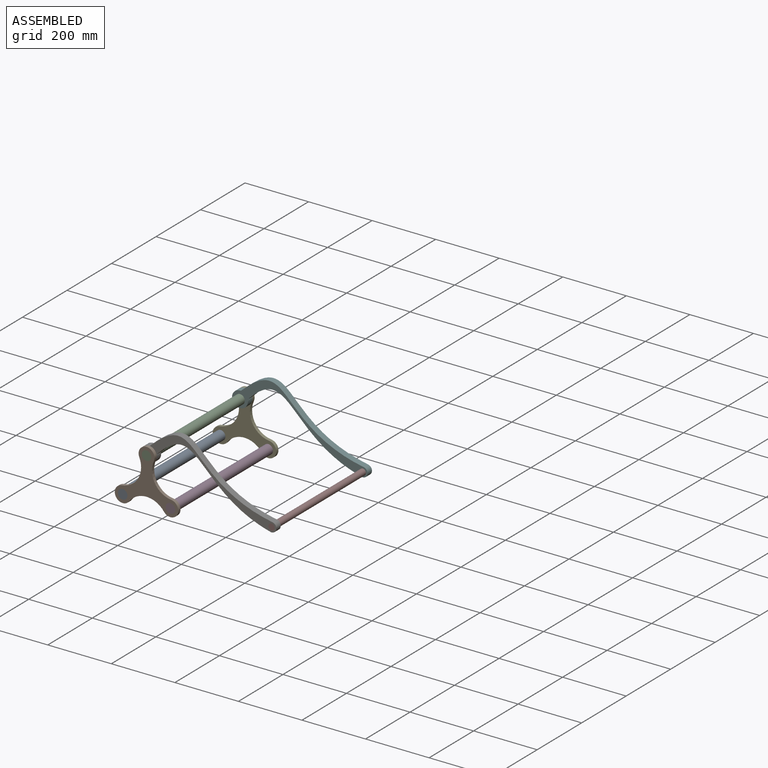
[diagram: assembled view]
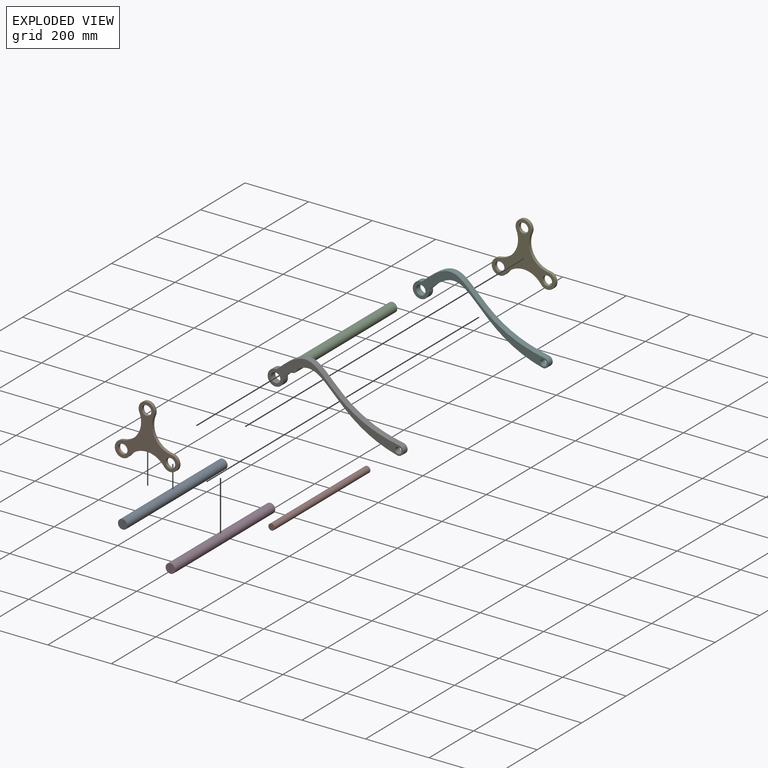
[diagram: exploded view]
GUIDED TOUR — MATED ASSEMBLY (Onshape document b97eb654275c051ed7080845, AutoMate assembly b97eb654275c051ed7080845_f234220a4649dae32820ab93_593a3325c6307398a8f3e202_default)

This assembly has 8 components, labeled P0..P7 below (a component is one placed occurrence of a part; the same part can appear more than once), held together by 8 mates. A mate is a constraint between two components; its type names the relative motion it leaves free:
  FASTENED — locks the two components together rigidly (no relative motion),
  REVOLUTE — leaves rotation about the listed axis free (a hinge).
Axis/direction vectors are unit vectors and 'through' points are millimeter coordinates, both in the assembly's world frame.

MATES
  1. FASTENED "Fastened 4": P6 <-> P7, direction (0.000, -1.000, 0.000) through (334.54, 127.93, 90.97) mm
  2. FASTENED "Fastened 5": P0 <-> P1, direction (0.000, -1.000, 0.000) through (-126.80, 117.93, 64.69) mm
  3. REVOLUTE "Revolute 2": P5 <-> P4, axis (0.000, 1.000, 0.000) through (-51.80, 557.93, 194.60) mm
  4. FASTENED "Fastened 6": P3 <-> P1, direction (0.000, -1.000, 0.000) through (23.20, 117.93, 64.69) mm
  5. FASTENED "Fastened 3": P7 <-> P5, direction (0.000, 1.000, 0.000) through (334.54, 557.93, 90.97) mm
  6. REVOLUTE "Revolute 1": P6 <-> P1, axis (0.000, -1.000, 0.000) through (-51.80, 127.93, 194.60) mm
  7. FASTENED "Fastened 1": P2 <-> P4, direction (0.000, -1.000, 0.000) through (-51.80, 567.93, 194.60) mm
  8. FASTENED "Fastened 2": P2 <-> P1, direction (0.000, -1.000, 0.000) through (-51.80, 117.93, 194.60) mm

ASSEMBLY ORDER
  1. P7 — the base component [order verified]
  2. P2 [order verified]
  3. P6 [order verified]
  4. P5 [order verified]
  5. P3 [order verified]
  6. P0 [order verified]
  7. P4 [order verified]
  8. P1 [order verified]
Order-tag legend:
  [order verified] — this step's position reverses a verified removal order: the component was checked to insert without passing through the ones already placed.

Of the 8 components, 6 carry the full construction recipe — the FeatureScript program that regenerates the part's solid from scratch; the rest are supplied as boundary geometry only.
Each toured component is shown spotlighted twice — in the assembled view, then in the exploded view, where a leader line traces a displaced component back to its assembled socket (saturated green if recipe-attached, orange if geometry-only; every other component desaturated gray) — followed by its recipe or geometry summary and the mates that hold it.
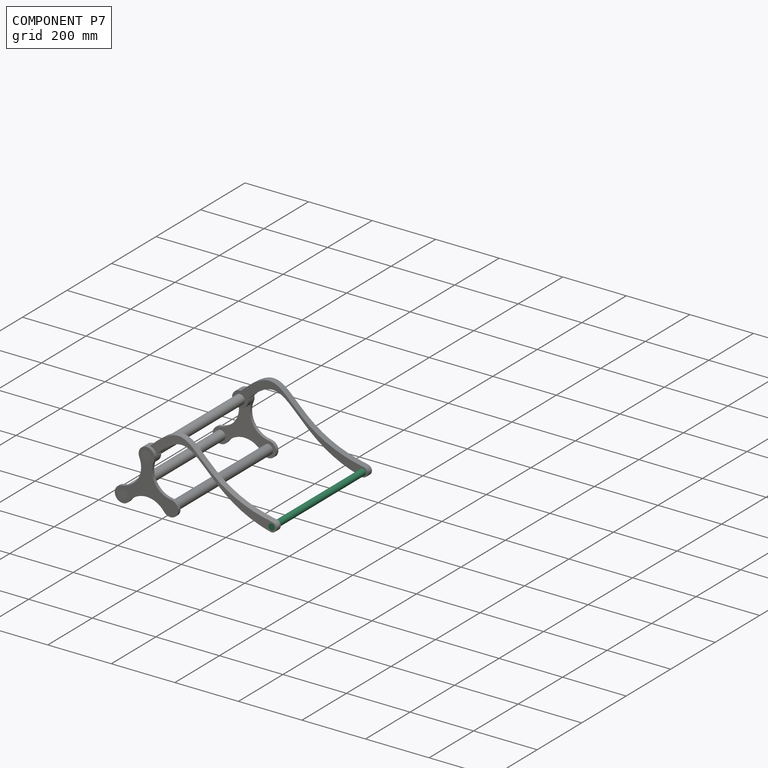
[diagram: component P7 — assembled]
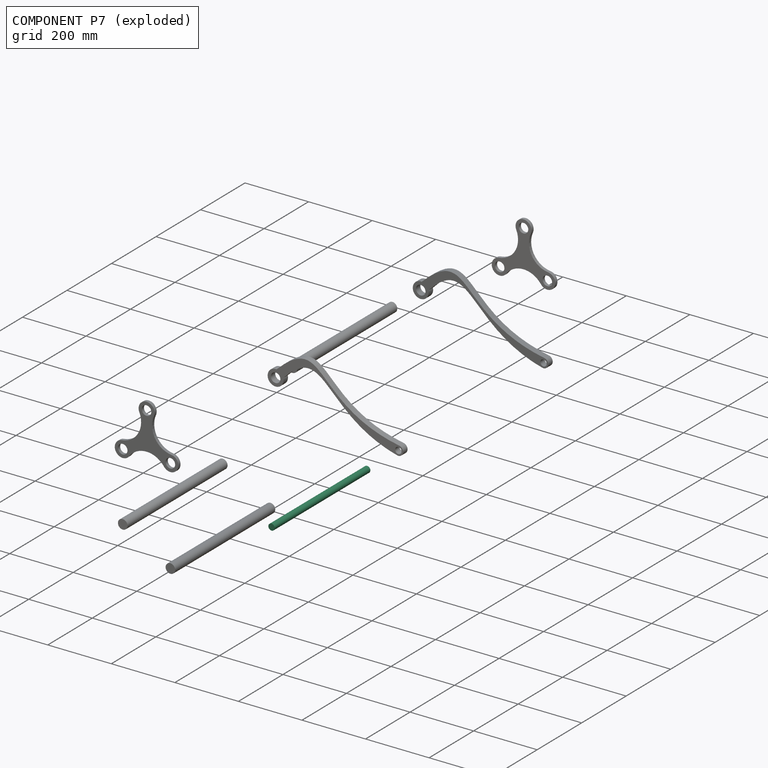
[diagram: component P7 — exploded]
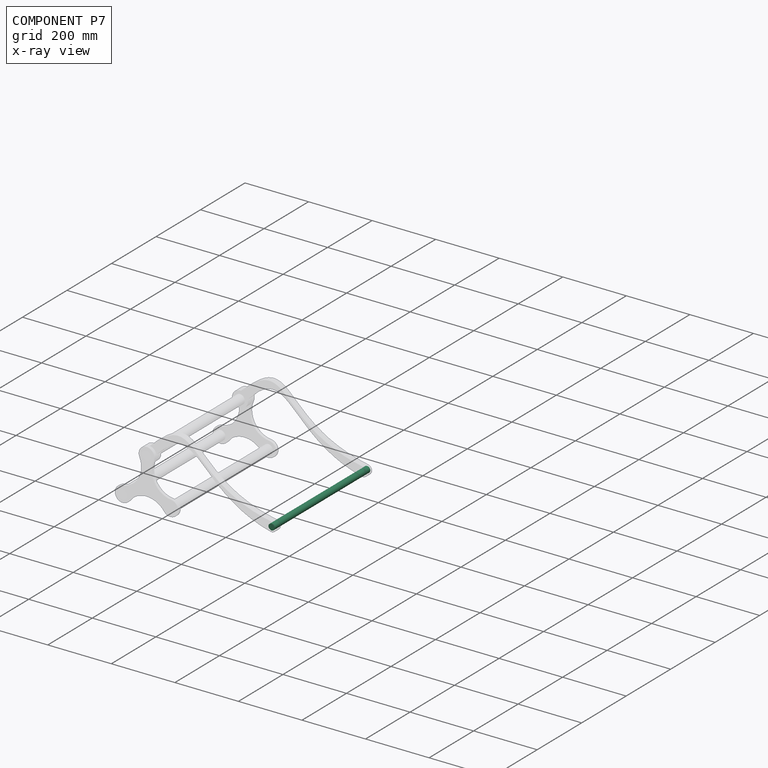
[diagram: component P7 — x-ray view]
COMPONENT P7 — recipe-attached (CADFS 00340620, mesh-verified: the recipe's output STEP matches this component's geometry to below the mesh-comparison resolution (tessellation chordal tolerance ~0.646 mm)).
Held by: FASTENED mate "Fastened 4" to P6; FASTENED mate "Fastened 3" to P5.
Construction recipe (FeatureScript — the CAD program that rebuilds this solid; sketch coordinates are in the units given by the * unit suffixes, e.g. mm):

FeatureScript 1511;
import(path : "onshape/std/geometry.fs", version : "1511.0");
import(path : "onshape/std/common.fs", version : "1511.0");
const mm = millimeter;
const VERTEX = EntityType.VERTEX;
const EDGE = EntityType.EDGE;
const FACE = EntityType.FACE;
const BODY = EntityType.BODY;
function v(x, y){return vector(x, y);}
function OD(order){return orderDisambiguation(order);}
function OSD(set){return originalSetDisambiguation(set);}
function TD(topology){return topologyDisambiguation(topology);}
function TDD(query){return trueDependencyDisambiguation(query);}
function sQuery(a, b, c) {return sketchEntityQuery(a, b, c);}

annotation { "Feature Type Name" : "Feature", "Feature Type Description" : "" }
export const myFeature = defineFeature(function(context is Context, id is Id, definition is map)
    precondition{}
    {
        {
            var Q0;
            Q0=qCreatedBy(makeId("Top.planeOp"),FACE);
            var sketch = newSketch(context, id + "F0", { "sketchPlane" : qUnion([Q0])});
            skCircle(sketch, "E0", {"center": v(0, 0) * mm, "radius": 10 * mm});
            skSolve(sketch);
        }
        {
            var Q0;
            Q0 = qSketchRegion(id + "F0", true);
            extrude(context, id + "F1", {"entities" : qUnion([Q0]), "depth" : 430 * mm});
        }
    });
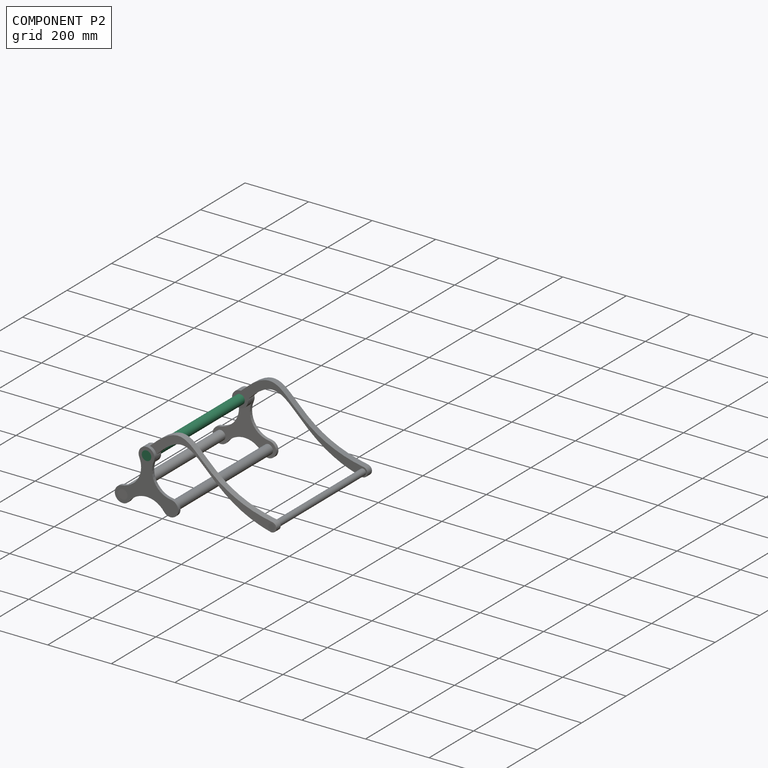
[diagram: component P2 — assembled]
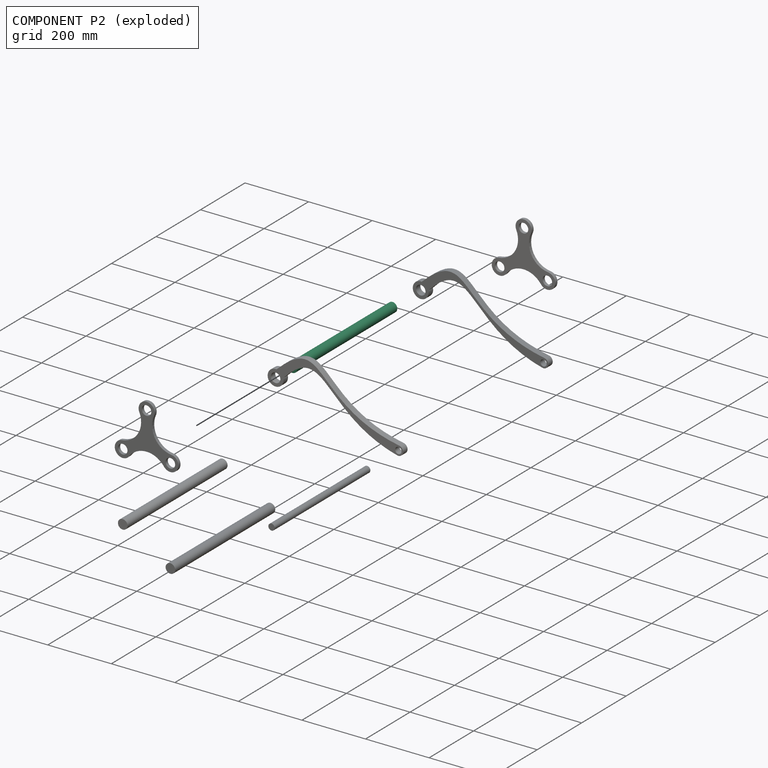
[diagram: component P2 — exploded]
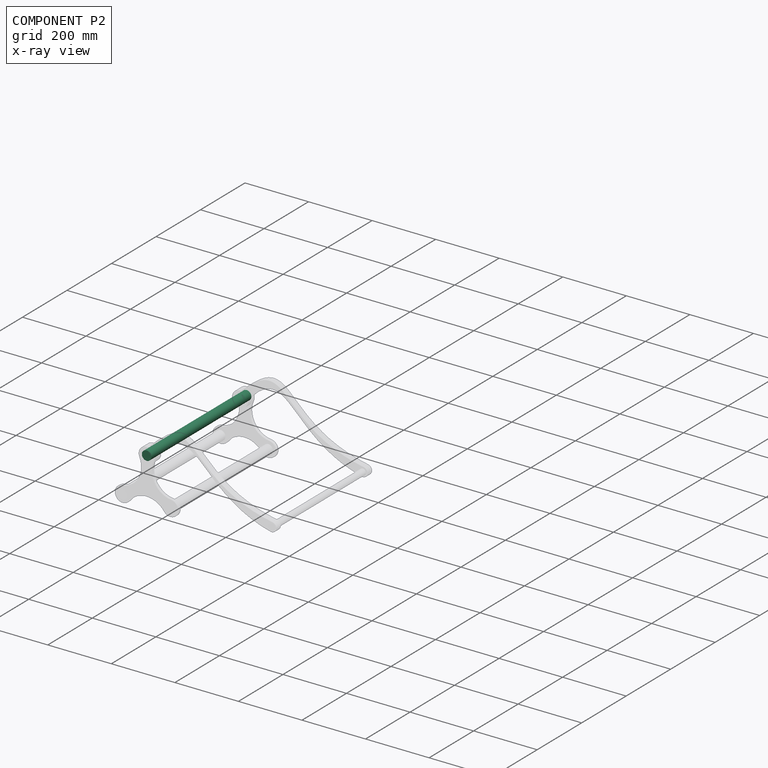
[diagram: component P2 — x-ray view]
COMPONENT P2 — same part as P0 (CADFS 00340619); its construction recipe is shown at P0.
Held by: FASTENED mate "Fastened 1" to P4; FASTENED mate "Fastened 2" to P1.
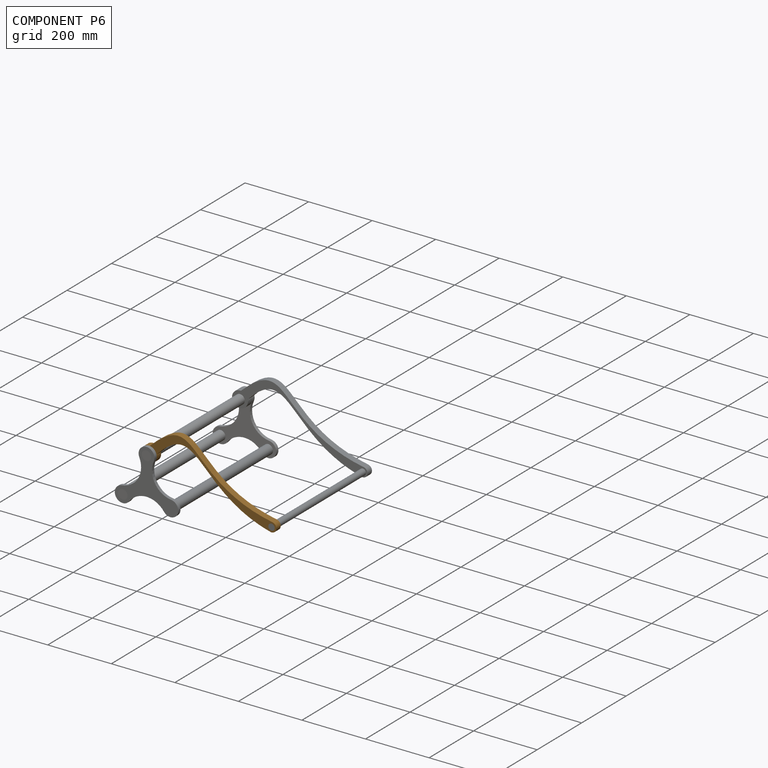
[diagram: component P6 — assembled]
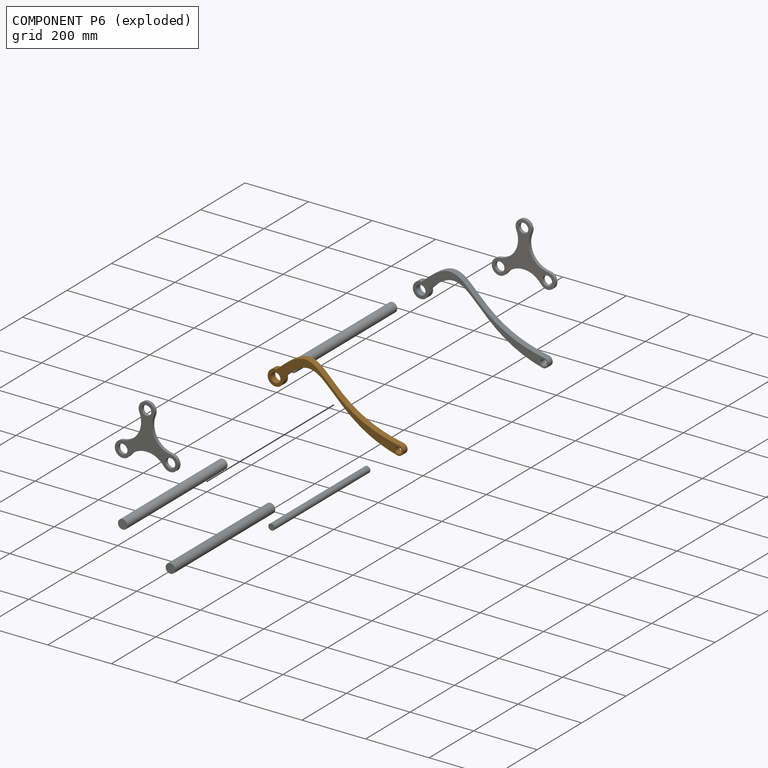
[diagram: component P6 — exploded]
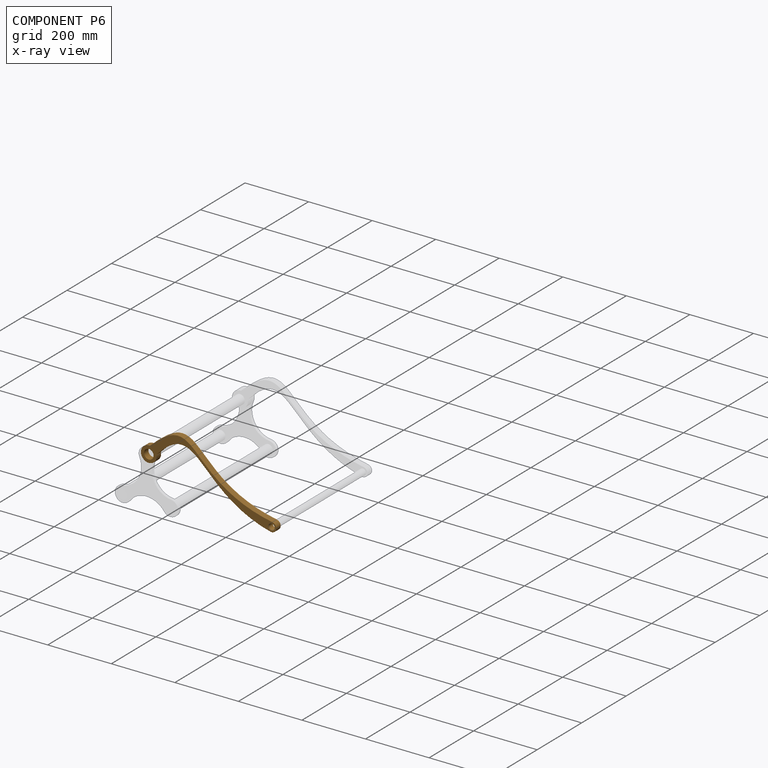
[diagram: component P6 — x-ray view]
COMPONENT P6 — geometry summary (no construction recipe available for this part):
  bounding box: 435.6 x 197.1 x 20.0 mm
  B-rep topology: 1 solid, 8 faces, 36 edges
  volume: 188225 mm^3 (11% of its bounding box)
  symmetry: mirror-symmetric across its y mid-plane
Held by: FASTENED mate "Fastened 4" to P7; REVOLUTE mate "Revolute 1" to P1.
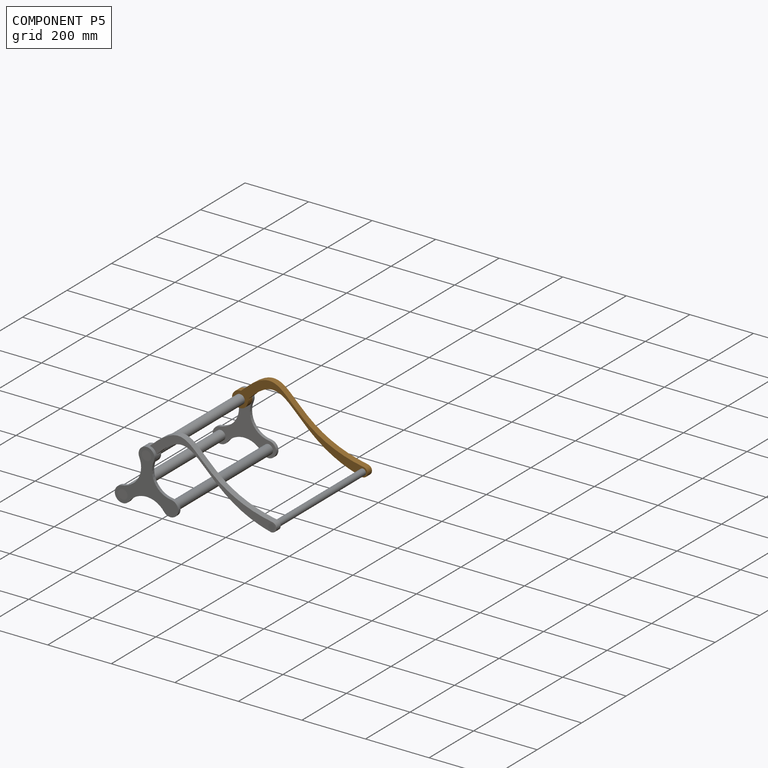
[diagram: component P5 — assembled]
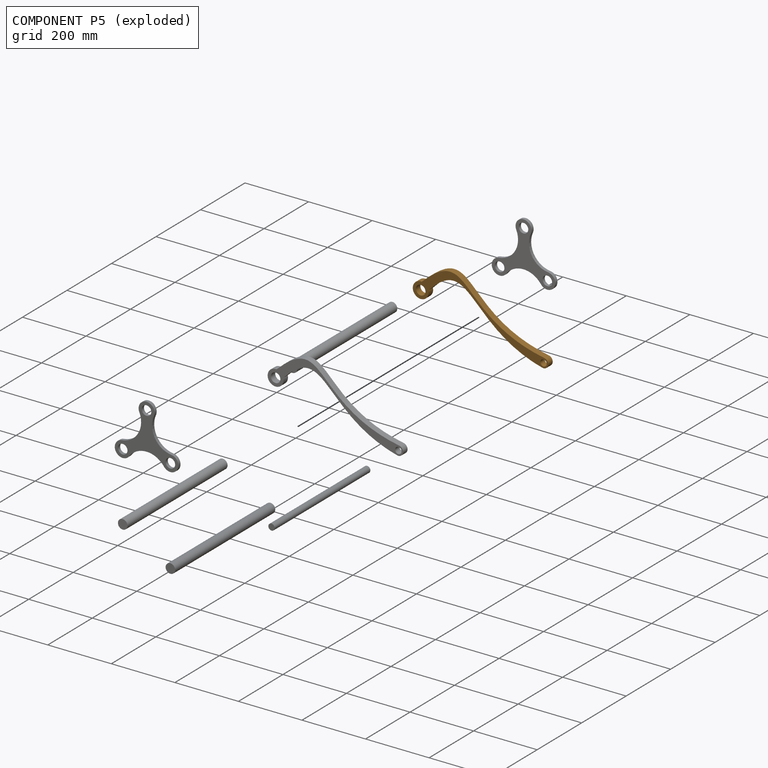
[diagram: component P5 — exploded]
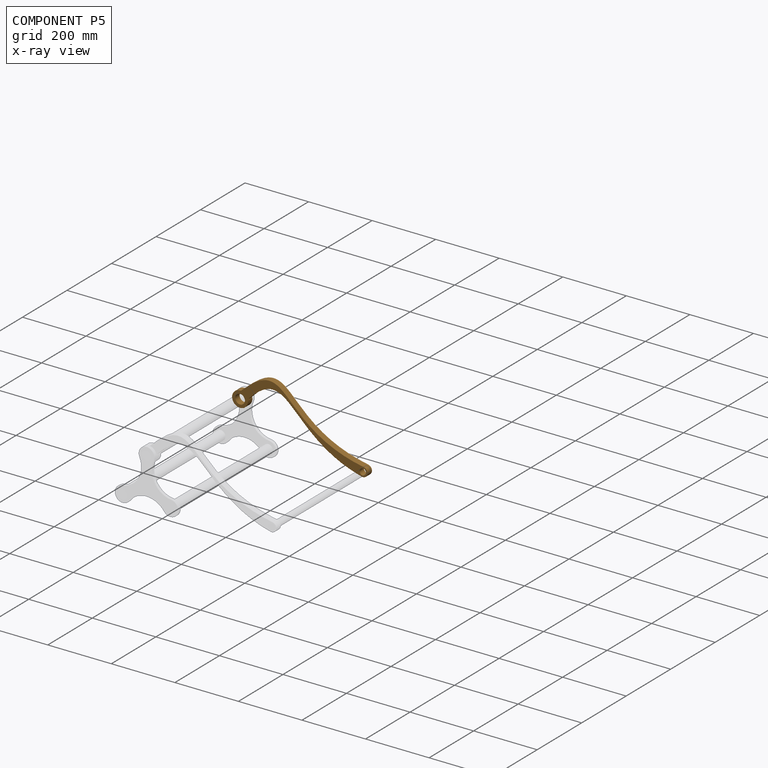
[diagram: component P5 — x-ray view]
COMPONENT P5 — geometry summary (no construction recipe available for this part):
  bounding box: 435.6 x 197.1 x 20.0 mm
  B-rep topology: 1 solid, 8 faces, 36 edges
  volume: 188225 mm^3 (11% of its bounding box)
  symmetry: mirror-symmetric across its y mid-plane
Held by: REVOLUTE mate "Revolute 2" to P4; FASTENED mate "Fastened 3" to P7.
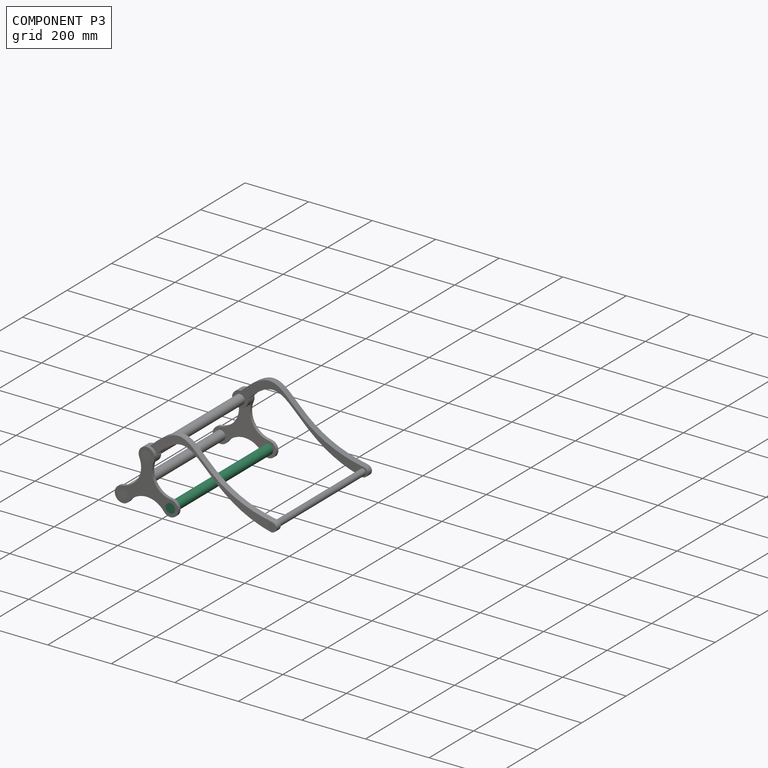
[diagram: component P3 — assembled]
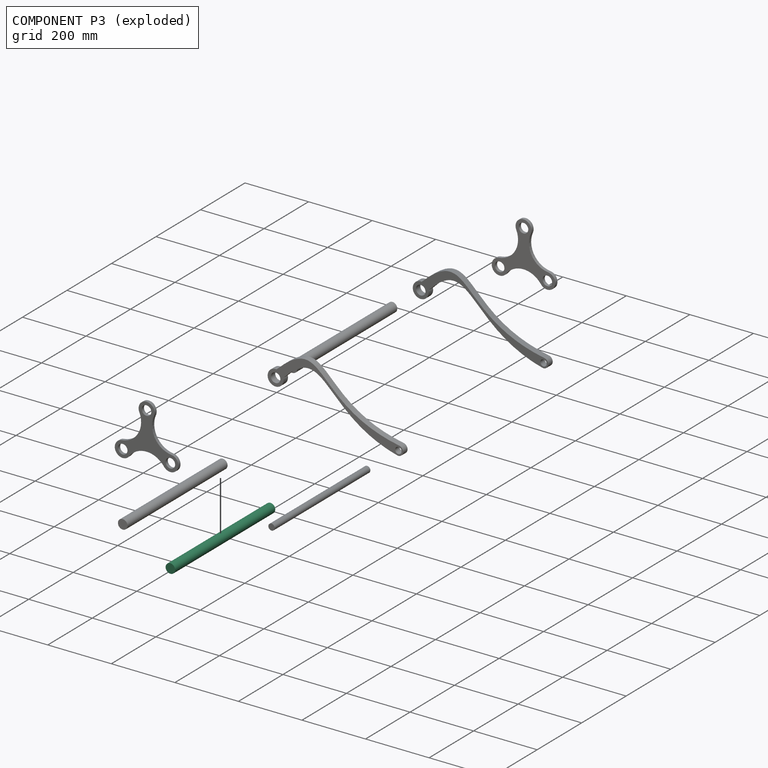
[diagram: component P3 — exploded]
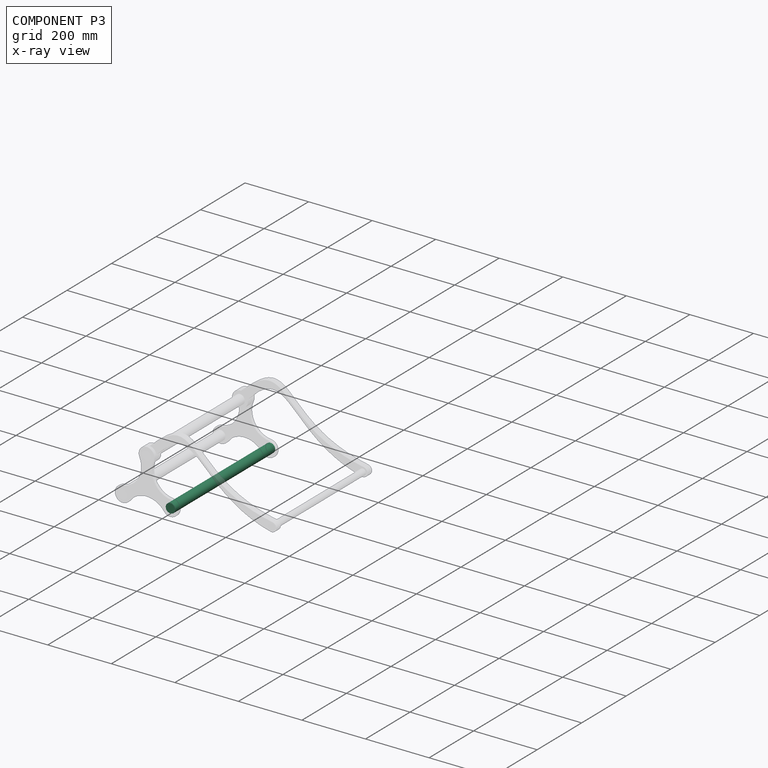
[diagram: component P3 — x-ray view]
COMPONENT P3 — same part as P0 (CADFS 00340619); its construction recipe is shown at P0.
Held by: FASTENED mate "Fastened 6" to P1.
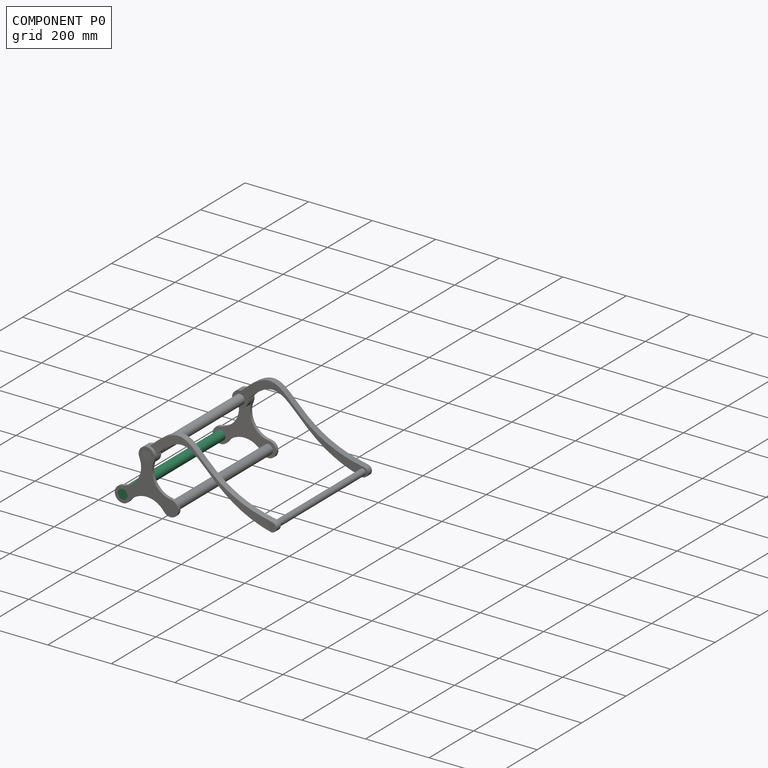
[diagram: component P0 — assembled]
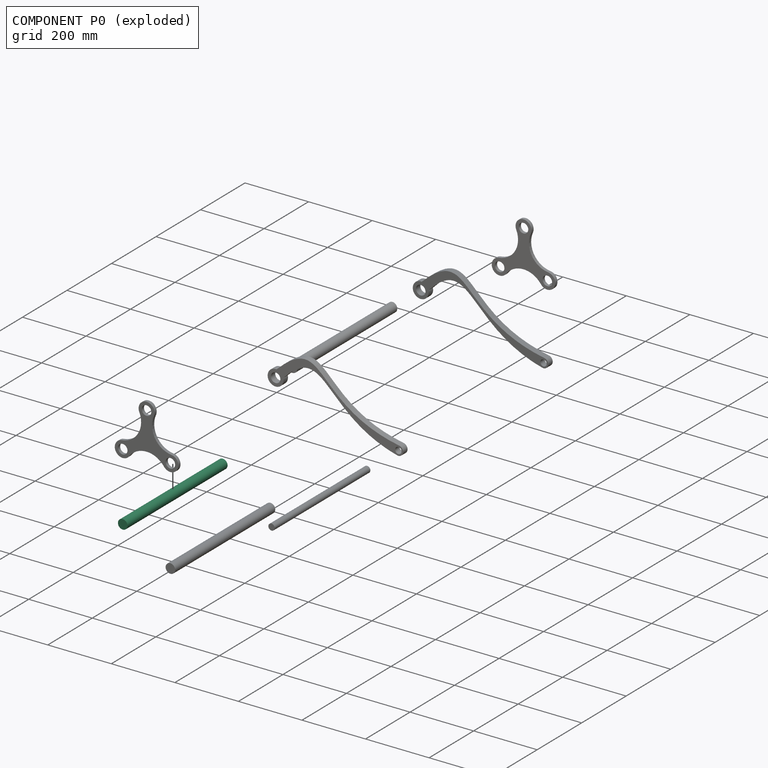
[diagram: component P0 — exploded]
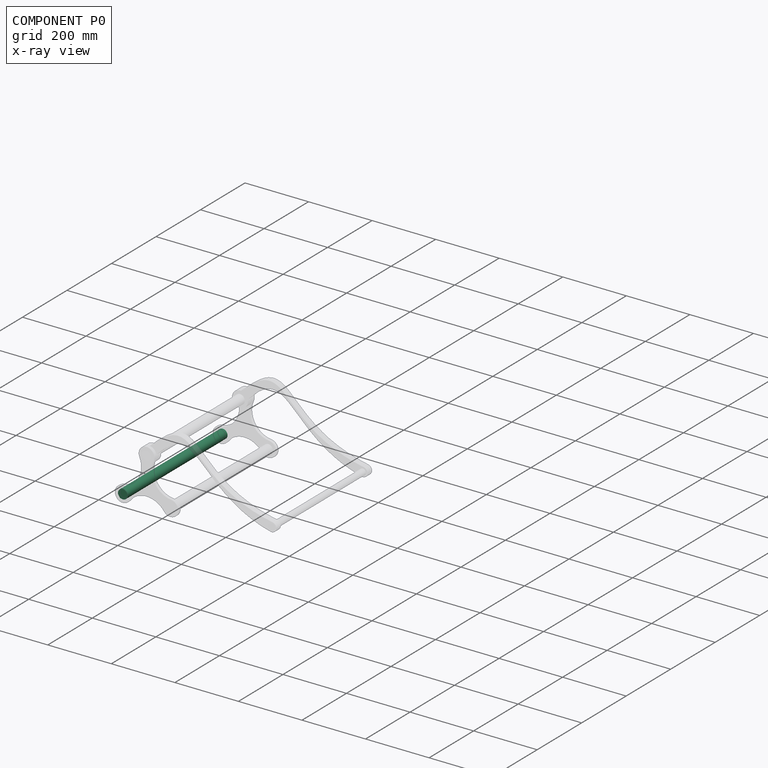
[diagram: component P0 — x-ray view]
COMPONENT P0 — recipe-attached (CADFS 00340619, mesh-verified: the recipe's output STEP matches this component's geometry to below the mesh-comparison resolution (tessellation chordal tolerance ~0.678 mm)).
Held by: FASTENED mate "Fastened 5" to P1.
Construction recipe (FeatureScript — the CAD program that rebuilds this solid; sketch coordinates are in the units given by the * unit suffixes, e.g. mm):

FeatureScript 1511;
import(path : "onshape/std/geometry.fs", version : "1511.0");
import(path : "onshape/std/common.fs", version : "1511.0");
const mm = millimeter;
const VERTEX = EntityType.VERTEX;
const EDGE = EntityType.EDGE;
const FACE = EntityType.FACE;
const BODY = EntityType.BODY;
function v(x, y){return vector(x, y);}
function OD(order){return orderDisambiguation(order);}
function OSD(set){return originalSetDisambiguation(set);}
function TD(topology){return topologyDisambiguation(topology);}
function TDD(query){return trueDependencyDisambiguation(query);}
function sQuery(a, b, c) {return sketchEntityQuery(a, b, c);}

annotation { "Feature Type Name" : "Feature", "Feature Type Description" : "" }
export const myFeature = defineFeature(function(context is Context, id is Id, definition is map)
    precondition{}
    {
        {
            var Q0;
            Q0=qCreatedBy(makeId("Top.planeOp"),FACE);
            var sketch = newSketch(context, id + "F0", { "sketchPlane" : qUnion([Q0])});
            skCircle(sketch, "E0", {"center": v(0, 0) * mm, "radius": 15 * mm});
            skSolve(sketch);
        }
        {
            var Q0;
            Q0 = qSketchRegion(id + "F0", true);
            extrude(context, id + "F1", {"entities" : qUnion([Q0]), "depth" : 450 * mm});
        }
    });
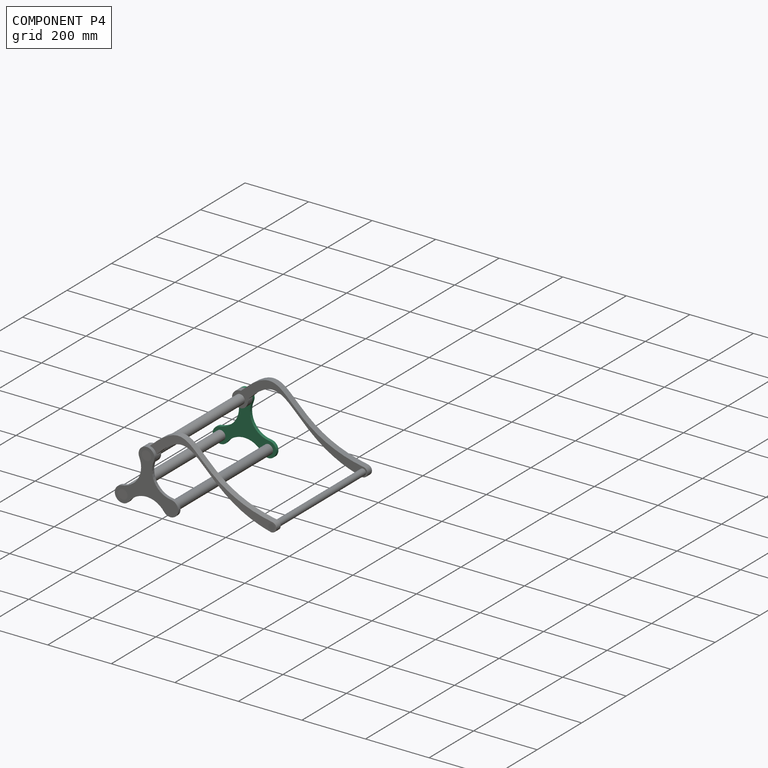
[diagram: component P4 — assembled]
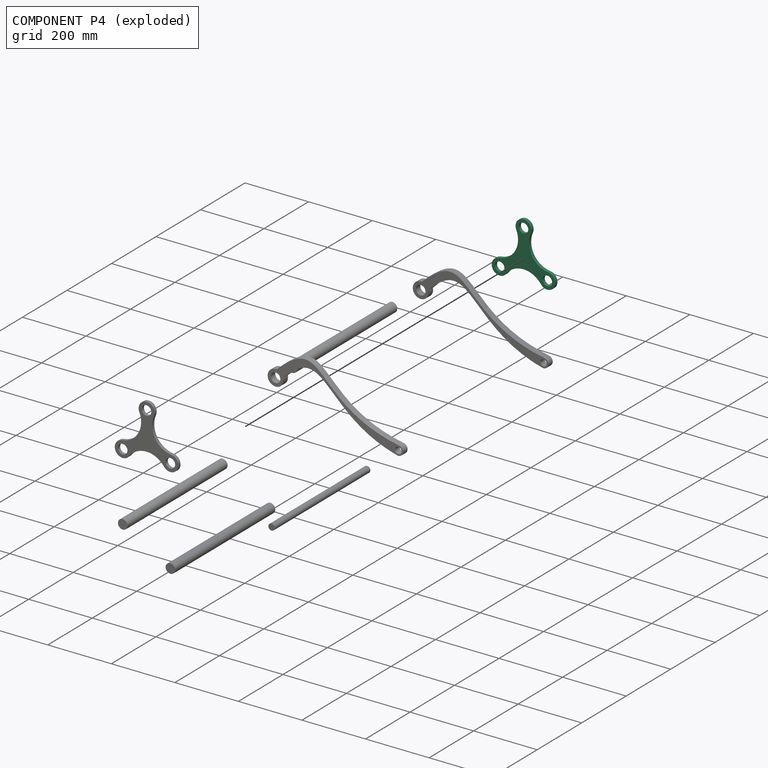
[diagram: component P4 — exploded]
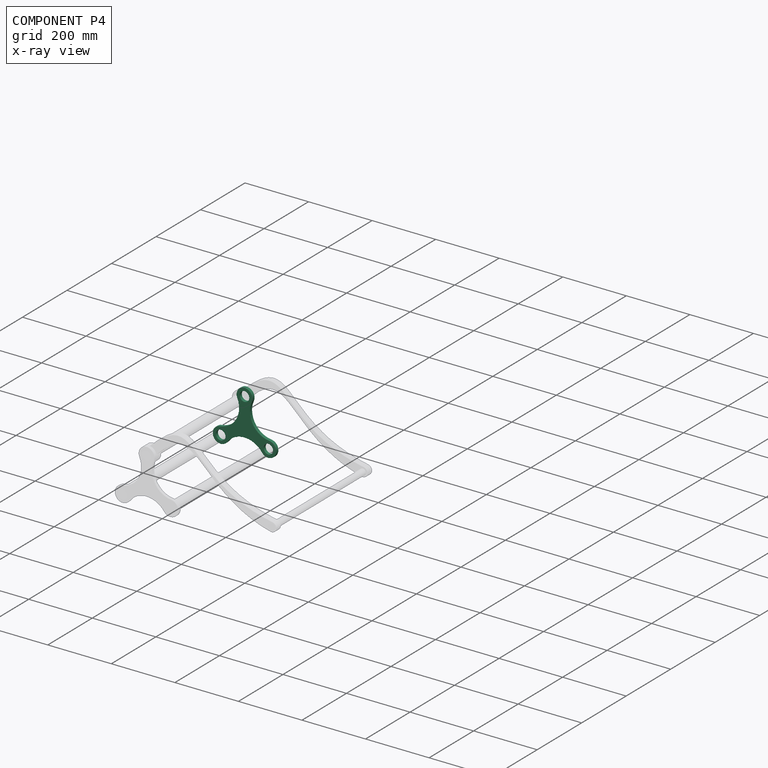
[diagram: component P4 — x-ray view]
COMPONENT P4 — same part as P1 (CADFS 00340615); its construction recipe is shown at P1.
Held by: REVOLUTE mate "Revolute 2" to P5; FASTENED mate "Fastened 1" to P2.
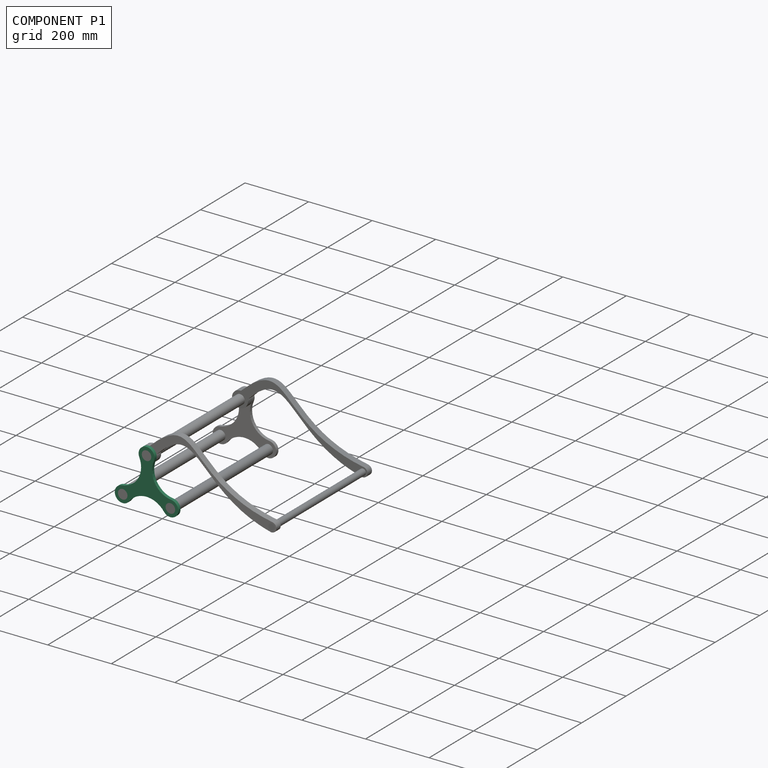
[diagram: component P1 — assembled]
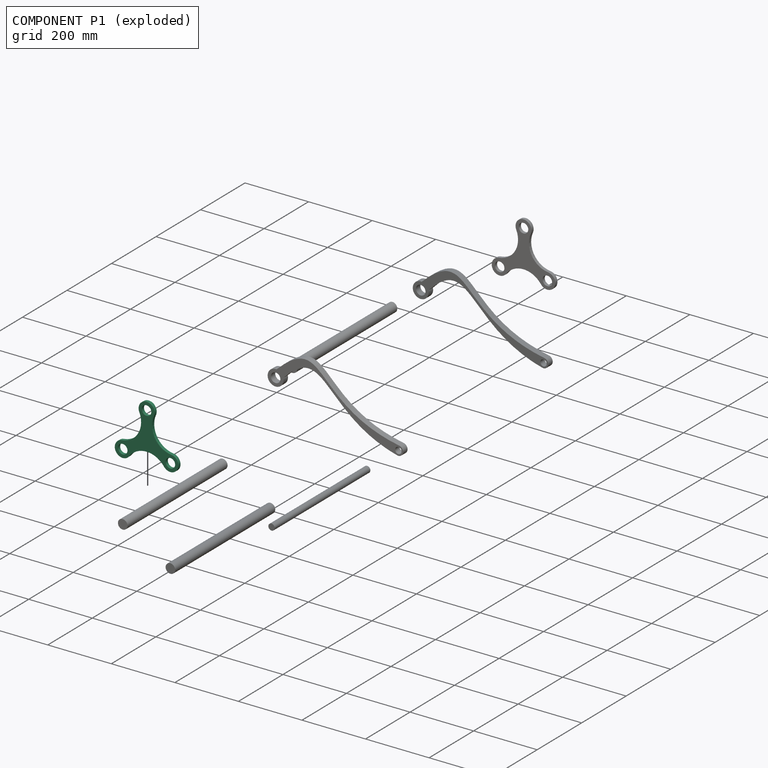
[diagram: component P1 — exploded]
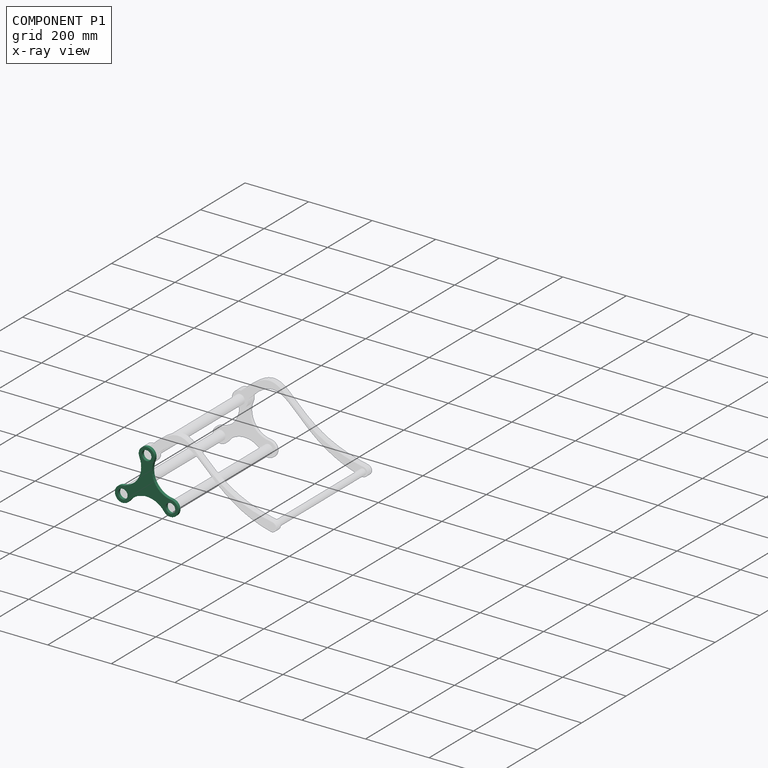
[diagram: component P1 — x-ray view]
COMPONENT P1 — recipe-attached (CADFS 00340615, mesh-verified: the recipe's output STEP matches this component's geometry to below the mesh-comparison resolution (tessellation chordal tolerance ~0.404 mm)).
Held by: FASTENED mate "Fastened 5" to P0; FASTENED mate "Fastened 6" to P3; REVOLUTE mate "Revolute 1" to P6; FASTENED mate "Fastened 2" to P2.
Construction recipe (FeatureScript — the CAD program that rebuilds this solid; sketch coordinates are in the units given by the * unit suffixes, e.g. mm):

FeatureScript 1511;
import(path : "onshape/std/geometry.fs", version : "1511.0");
import(path : "onshape/std/common.fs", version : "1511.0");
const mm = millimeter;
const VERTEX = EntityType.VERTEX;
const EDGE = EntityType.EDGE;
const FACE = EntityType.FACE;
const BODY = EntityType.BODY;
function v(x, y){return vector(x, y);}
function OD(order){return orderDisambiguation(order);}
function OSD(set){return originalSetDisambiguation(set);}
function TD(topology){return topologyDisambiguation(topology);}
function TDD(query){return trueDependencyDisambiguation(query);}
function sQuery(a, b, c) {return sketchEntityQuery(a, b, c);}

annotation { "Feature Type Name" : "Feature", "Feature Type Description" : "" }
export const myFeature = defineFeature(function(context is Context, id is Id, definition is map)
    precondition{}
    {
        {
            var Q0;
            Q0=qCreatedBy(makeId("Front.planeOp"),FACE);
            var sketch = newSketch(context, id + "F0", { "sketchPlane" : qUnion([Q0])});
            skCircle(sketch, "E0", {"center": v(0, 129.9) * mm, "radius": 15 * mm});
            skCircle(sketch, "E1", {"center": v(0, 129.9) * mm, "radius": 25 * mm});
            skCircle(sketch, "E2", {"center": v(-75, 0) * mm, "radius": 15 * mm});
            skCircle(sketch, "E3", {"center": v(-75, 0) * mm, "radius": 25 * mm});
            skCircle(sketch, "E4", {"center": v(75, 0) * mm, "radius": 15 * mm});
            skCircle(sketch, "E5", {"center": v(75, 0) * mm, "radius": 25 * mm});
            skLineSegment(sketch, "E6", {"start": v(0, 129.9) * mm, "end": v(-75, 0) * mm, "construction": true});
            skLineSegment(sketch, "E7", {"start": v(75, 0) * mm, "end": v(-75, 0) * mm, "construction": true});
            skLineSegment(sketch, "E8", {"start": v(0, 129.9) * mm, "end": v(75, 0) * mm, "construction": true});
            skPoint(sketch, "E9", {"position": v(-37.5, 64.95) * mm});
            skPoint(sketch, "E10", {"position": v(37.5, 64.95) * mm});
            skPoint(sketch, "E11", {"position": v(0, 0) * mm});
            skPoint(sketch, "E12", {"position": v(-85.12, 92.45) * mm});
            skPoint(sketch, "E13", {"position": v(85.12, 92.45) * mm});
            skPoint(sketch, "E14", {"position": v(0, -55) * mm});
            skCircle(sketch, "E15", {"center": v(-85.12, 92.45) * mm, "radius": 68 * mm, "construction": true});
            skCircle(sketch, "E16", {"center": v(85.12, 92.45) * mm, "radius": 68 * mm, "construction": true});
            skCircle(sketch, "E17", {"center": v(0, -55) * mm, "radius": 68 * mm, "construction": true});
            skArc(sketch, "E18", {"start": v(-77.72, 24.85) * mm, "mid": v(-26.23, 58.45) * mm, "end": v(-22.88, 119.83) * mm, "construction": true});
            skArc(sketch, "E19", {"start": v(-77.72, 24.85) * mm, "mid": v(-26.23, 58.45) * mm, "end": v(-22.88, 119.83) * mm});
            skArc(sketch, "E20", {"start": v(22.88, 119.83) * mm, "mid": v(26.23, 58.45) * mm, "end": v(77.72, 24.85) * mm});
            skArc(sketch, "E21", {"start": v(54.84, -14.78) * mm, "mid": v(0, 13) * mm, "end": v(-54.84, -14.78) * mm});
            skSolve(sketch);
        }
        {
            var Q0;
            Q0 = qSketchRegion(id + "F0", true);
            extrude(context, id + "F1", {"entities" : qUnion([Q0]), "depth" : 5 * mm});
        }
        {
            var Q0;
            Q0 = qSketchRegion(id + "F0", true);
            extrude(context, id + "F2", {"entities" : qUnion([Q0]), "operationType" : NewBodyOperationType.ADD, "depth" : 10 * mm});
        }
    });
PROVENANCE & LICENSES
Assembly (occurrences, transforms, mates, per-part STEP geometry): AutoMate dataset, Zenodo record 7776208, CC0.
Construction recipes: CADFS (HuggingFace VladPyatov/CADFS, CC-BY-4.0, layered over the ABC dataset), FeatureScript reconstruction programs keyed by ABC model id.
Join: ABC meta listings map ABC model id -> Onshape documentId; within a shared document, parts are matched by geometric signature (bounding-box dims + volume at 0.1% relative tolerance, exact B-rep face/solid counts).
Verification: 6 of this assembly's 8 components carry a recipe attachment, and every attachment is mesh-verified: the CADFS STEP and the AutoMate member STEP were compared as meshes in their shared local frame (symmetric sampled-point-to-mesh distance); worst across the 6 attachments: below the mesh-comparison resolution (tessellation chordal tolerance ~0.678 mm) on a 452 mm part.
Renders: orthographic iso camera (az 35 / el 25); the floor grid conveys scale (grid pitch printed in each image; no ruler). In the exploded view each component is displaced by its stored offset vector: the offsets alone carry the explosion direction (mate normal/axis signs are not orientation cues and do not encode it), and separation distances are assigned per mate-chain, not proportionally to assembly-order depth.
